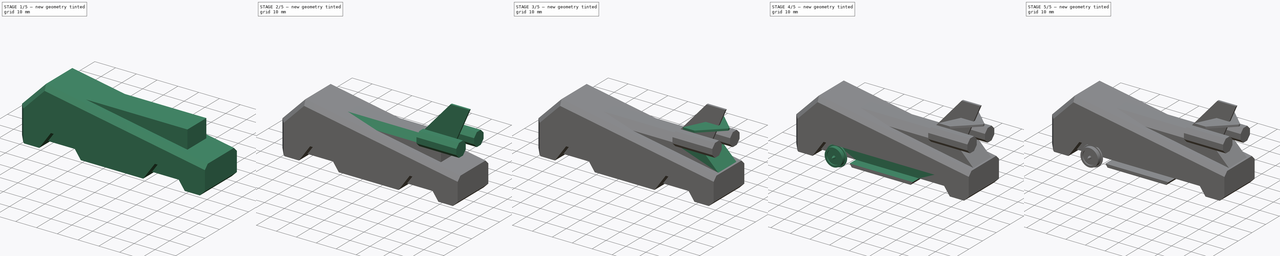
[diagram: build sequence overview — one tinted view per stage of 5, left to right]
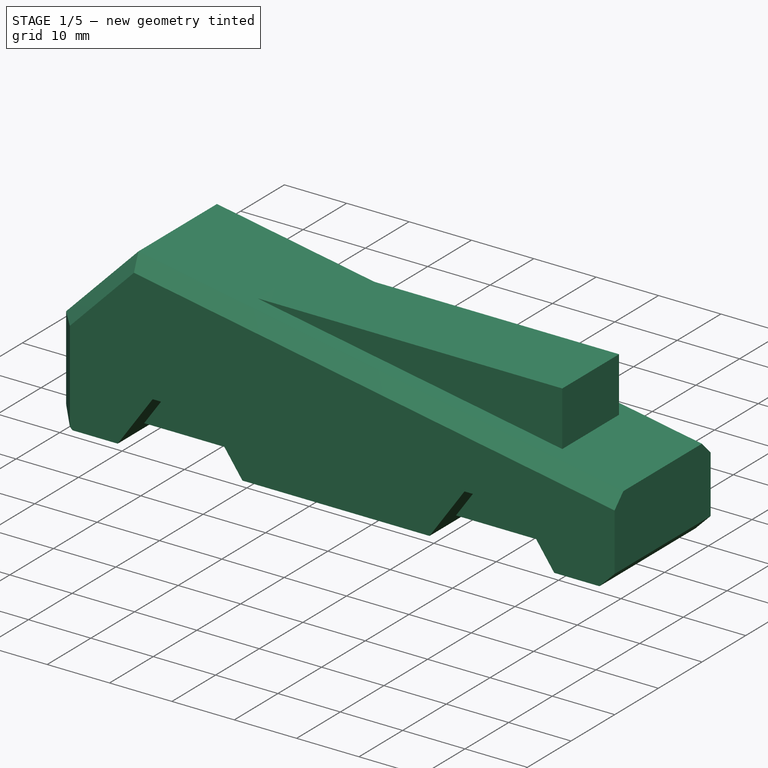
[diagram: stage 1 of 5 — iso view after this stage's code; geometry added in this stage tinted green]
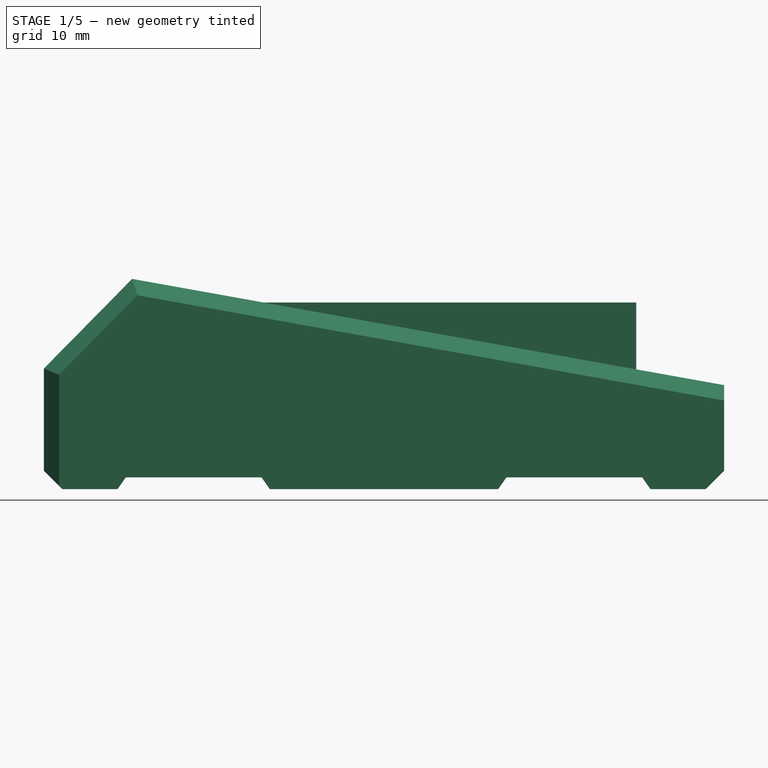
[diagram: stage 1 of 5 — front view after this stage's code; geometry added in this stage tinted green]
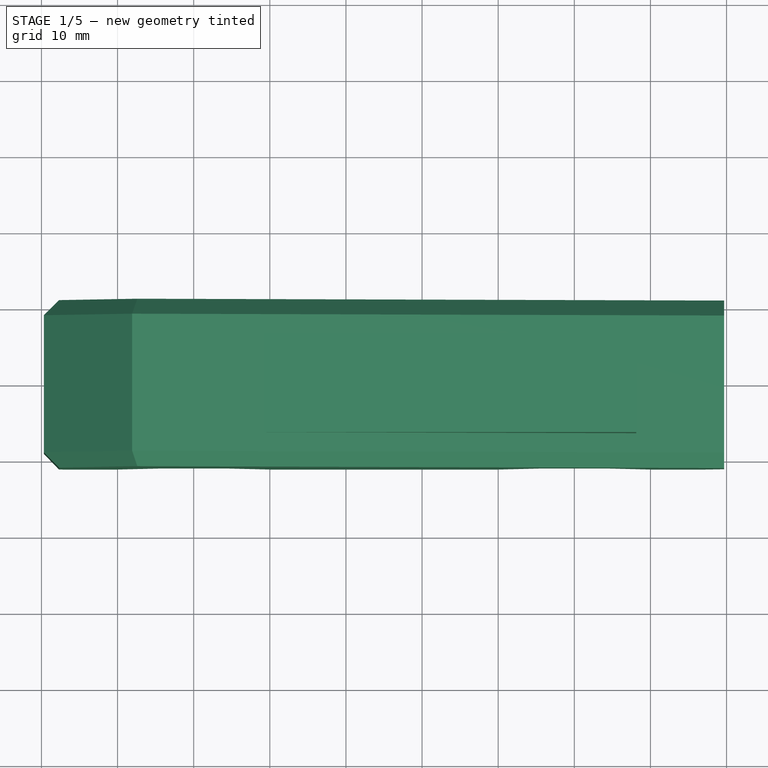
[diagram: stage 1 of 5 — top view after this stage's code; geometry added in this stage tinted green]
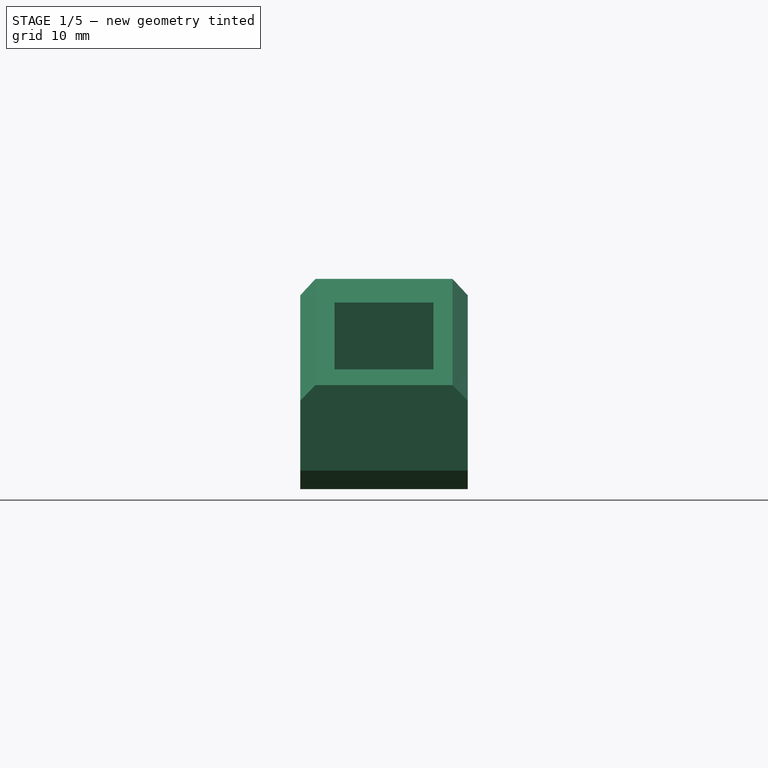
[diagram: stage 1 of 5 — right view after this stage's code; geometry added in this stage tinted green]
FCSTD DOCUMENT  (FreeCAD 0.18R15969 (Git))
Label: HO-SpaceEngine
License: All rights reserved
LicenseURL: http://en.wikipedia.org/wiki/All_rights_reserved
objects: Sketcher::SketchObject×8, PartDesign::Pad×5, PartDesign::Mirrored×4, PartDesign::Body×3, PartDesign::Revolution×2, PartDesign::Chamfer×2, PartDesign::Draft×1, PartDesign::Pocket×1
note: 34 computed .brp shape members not serialized (recipe doc carries the construction recipe); baked Part::Feature solids carry a one-line shape summary decoded from their .brp

FEATURE [PartDesign::Body] Body001
  Group = -> [Sketch001,Revolution001,Mirrored001]
  Origin = -> Origin001
  Placement = pos=(50,0,0) rot=(0,0,1;0rad)
  Tip = -> Mirrored001
FEATURE [Sketcher::SketchObject] Sketch002
  MapMode = 5
  Placement = pos=(0,0,0) rot=(1,0,0;1.5708rad)
  Support = -> [XZ_Plane002]
  sketch-geometry (19):
    g0: LineSegment StartX=-19.6779 StartY=0.876593 StartZ=0 EndX=-17.2514 EndY=-1.54989 EndZ=0
    g1: LineSegment StartX=-17.2514 StartY=-1.54989 StartZ=0 EndX=-10 EndY=-1.54989 EndZ=0
    g2: LineSegment StartX=-10 StartY=-1.54989 StartZ=0 EndX=-4.39161 EndY=6.40211 EndZ=0
    g3: LineSegment StartX=-4.39161 StartY=6.40211 StartZ=0 EndX=4.39161 EndY=6.40211 EndZ=0
    g4: LineSegment StartX=4.39161 StartY=6.40211 StartZ=0 EndX=10 EndY=-1.54989 EndZ=0
    g5: LineSegment StartX=10 StartY=-1.54989 StartZ=0 EndX=40 EndY=-1.54989 EndZ=0
    g6: LineSegment StartX=40 StartY=-1.54989 StartZ=0 EndX=45.6084 EndY=6.40211 EndZ=0
    g7: LineSegment StartX=45.6084 StartY=6.40211 StartZ=0 EndX=54.3916 EndY=6.40211 EndZ=0
    g8: LineSegment StartX=54.3916 StartY=6.40211 StartZ=0 EndX=60 EndY=-1.54989 EndZ=0
    g9: LineSegment StartX=-19.6779 StartY=0.876593 StartZ=0 EndX=-19.6779 EndY=14.2902 EndZ=0
    g10: LineSegment StartX=-19.6779 StartY=14.2902 StartZ=0 EndX=-8.08553 EndY=26.0663 EndZ=0
    g11: LineSegment StartX=-8.08553 StartY=26.0663 StartZ=0 EndX=69.6779 EndY=12.1133 EndZ=0
    g12: LineSegment StartX=69.6779 StartY=12.1133 StartZ=0 EndX=69.6779 EndY=0.876593 EndZ=0
    g13: LineSegment StartX=69.6779 StartY=0.876593 StartZ=0 EndX=67.2514 EndY=-1.54989 EndZ=0
    g14: LineSegment StartX=67.2514 StartY=-1.54989 StartZ=0 EndX=60 EndY=-1.54989 EndZ=0
    g15: LineSegment [constr] StartX=-10 StartY=-1.54989 StartZ=0 EndX=10 EndY=-1.54989 EndZ=0
    g16: LineSegment [constr] StartX=40 StartY=-1.54989 StartZ=0 EndX=60 EndY=-1.54989 EndZ=0
    g17: LineSegment [constr] StartX=-4.39161 StartY=6.40211 StartZ=0 EndX=0 EndY=0 EndZ=0
    g18: LineSegment [constr] StartX=0 StartY=0 StartZ=0 EndX=4.39161 EndY=6.40211 EndZ=0
  constraints (46):
    c: Coincident(g1,g0)
    c: Horizontal(g1)
    c: Coincident(g2,g1)
    c: Coincident(g3,g2)
    c: Horizontal(g3)
    c: Coincident(g4,g3)
    c: Coincident(g5,g4)
    c: Horizontal(g5)
    c: Coincident(g6,g5)
    c: Coincident(g7,g6)
    c: Horizontal(g7)
    c: Coincident(g8,g7)
    c: Coincident(g9,g0)
    c: Vertical(g9)
    c: Coincident(g10,g9)
    c: Coincident(g11,g10)
    c: Coincident(g12,g11)
    c: Vertical(g12)
    c: Coincident(g13,g12)
    c: Coincident(g14,g13)
    c: Coincident(g14,g8)
    c: Horizontal(g14)
    c: Equal(g14,g1)
    c: Equal(g13,g0)
    c: Angle(g1,g0) = 2.35619
    c: Angle(g13,g14) = 2.35619
    c: Equal(g2,g4)
    c: Equal(g6,g8)
    c: Coincident(g15,g1)
    c: Coincident(g15,g4)
    c: Horizontal(g15)
    c: Coincident(g16,g5)
    c: Coincident(g16,g8)
    c: Equal(g16,g15)
    c: Equal(g3,g7)
    c: DistanceX(g2,g6) = 50
    c: Coincident(g17,g2)
    c: Coincident(g18,g3)
    c: Coincident(g18,g-1)
    c: Equal(g18,g17)
    c: Equal(g17,g18)
    c: Coincident(g17,g-1)
    c: DistanceX(g15,g15) = 20
    c: Horizontal(g16)
    c: Equal(g16,g15)
    c: Equal(g6,g4)
FEATURE [PartDesign::Pad] Pad
  Length = 22
  Length2 = 100
  Midplane = true
  Placement = pos=(0,0,0) rot=(1,0,0;1.5708rad)
  Profile = -> Sketch002
  Refine = true
  Type = 0
FEATURE [Sketcher::SketchObject] Sketch003
  MapMode = 5
  Placement = pos=(0,0,0) rot=(1,0,0;1.5708rad)
  Support = -> [XZ_Plane002]
  sketch-geometry (8):
    g0: LineSegment StartX=-12.7052 StartY=11.6894 StartZ=0 EndX=62.5315 EndY=11.6894 EndZ=0
    g1: LineSegment StartX=62.5315 StartY=11.6894 StartZ=0 EndX=62.5315 EndY=0 EndZ=0
    g2: LineSegment StartX=62.5315 StartY=0 StartZ=0 EndX=-12.7052 EndY=0 EndZ=0
    g3: LineSegment StartX=-12.7052 StartY=0 StartZ=0 EndX=-12.7052 EndY=11.6894 EndZ=0
    g4: LineSegment StartX=2.76225 StartY=22.9559 StartZ=0 EndX=58.1395 EndY=22.9559 EndZ=0
    g5: LineSegment StartX=58.1395 StartY=22.9559 StartZ=0 EndX=58.1395 EndY=13.79 EndZ=0
    g6: LineSegment StartX=58.1395 StartY=13.79 StartZ=0 EndX=2.76225 EndY=13.79 EndZ=0
    g7: LineSegment StartX=2.76225 StartY=13.79 StartZ=0 EndX=2.76225 EndY=22.9559 EndZ=0
  constraints (17):
    c: Coincident(g0,g1)
    c: Coincident(g1,g2)
    c: Coincident(g2,g3)
    c: Coincident(g3,g0)
    c: Horizontal(g0)
    c: Horizontal(g2)
    c: Vertical(g1)
    c: Vertical(g3)
    c: PointOnObject(g1,g-1)
    c: Coincident(g4,g5)
    c: Coincident(g5,g6)
    c: Coincident(g6,g7)
    c: Coincident(g7,g4)
    c: Horizontal(g4)
    c: Horizontal(g6)
    c: Vertical(g5)
    c: Vertical(g7)
FEATURE [PartDesign::Pad] Pad001
  BaseFeature = -> Pad
  Length = 13
  Length2 = 100
  Midplane = true
  Placement = pos=(0,0,0) rot=(1,0,0;1.5708rad)
  Profile = -> Sketch003
  Refine = true
  Type = 0
FEATURE [PartDesign::Chamfer] Chamfer
  Base = -> Pad001 [Edge33,Edge21,Edge34,Edge22,Edge6,Edge7]
  BaseFeature = -> Pad001
  Placement = pos=(0,0,0) rot=(1,0,0;1.5708rad)
  Size = 2
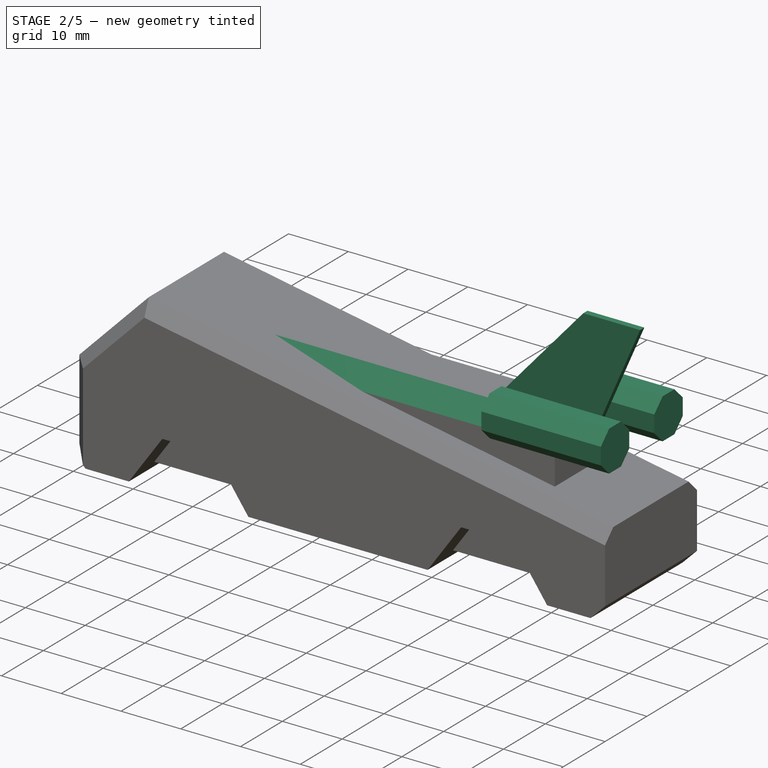
[diagram: stage 2 of 5 — iso view after this stage's code; geometry added in this stage tinted green]
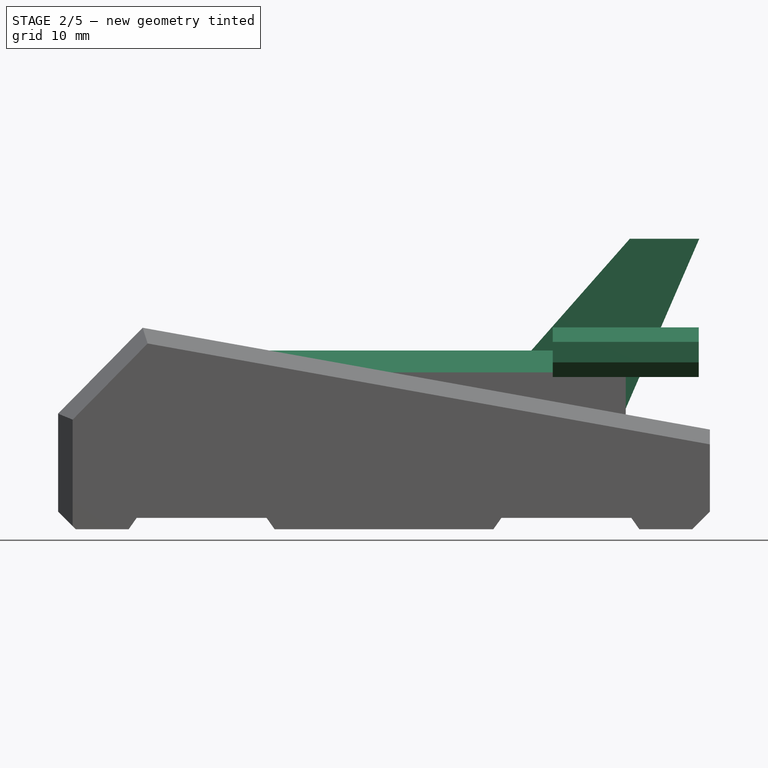
[diagram: stage 2 of 5 — front view after this stage's code; geometry added in this stage tinted green]
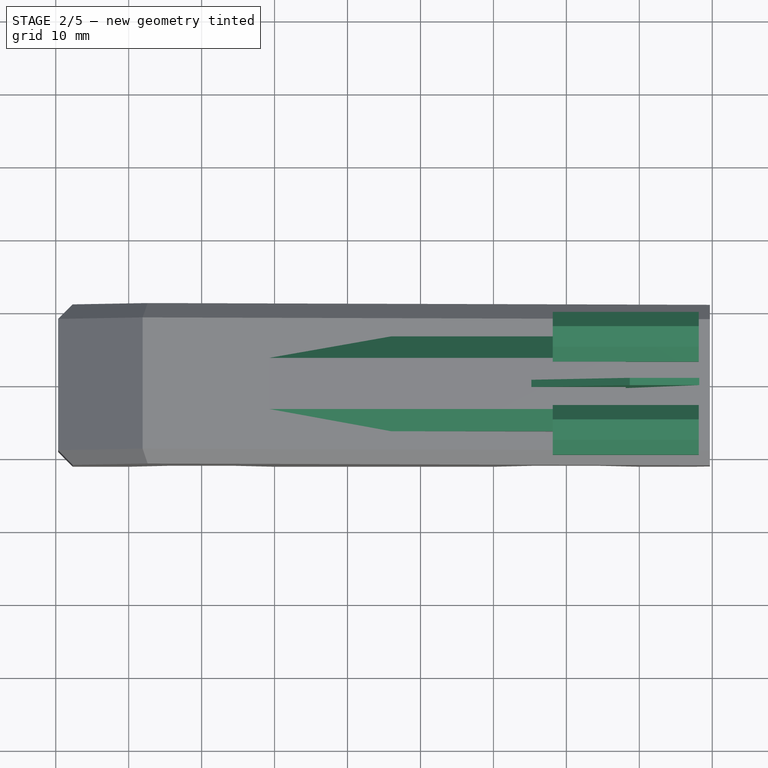
[diagram: stage 2 of 5 — top view after this stage's code; geometry added in this stage tinted green]
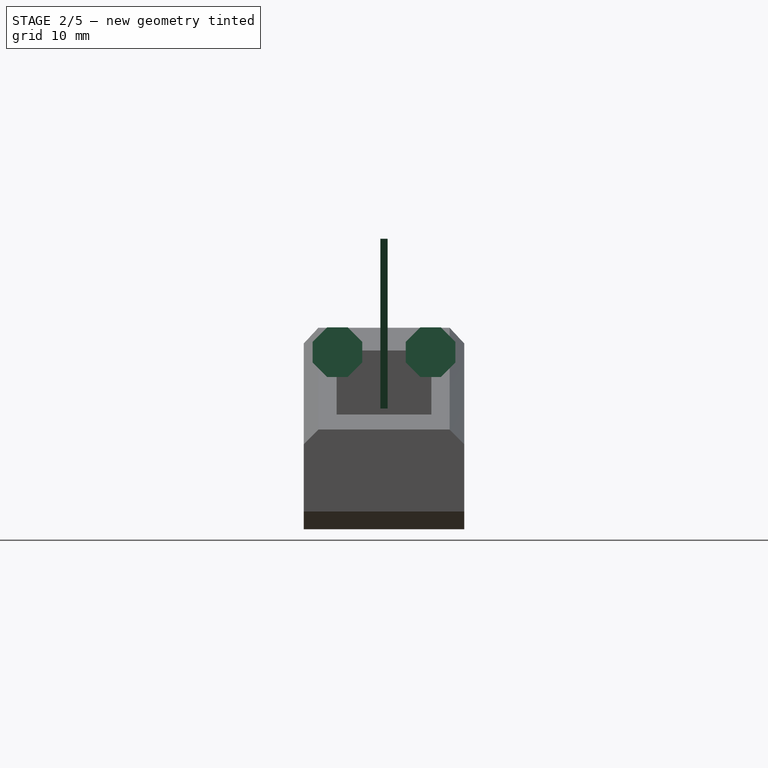
[diagram: stage 2 of 5 — right view after this stage's code; geometry added in this stage tinted green]
FEATURE [Sketcher::SketchObject] Sketch004
  MapMode = 5
  Placement = pos=(58.1395,0,0) rot=(0.707107,0,0.707107;3.14159rad)
  Support = -> [Chamfer]
  sketch-geometry (22):
    g0: LineSegment StartX=24.1287 StartY=2.98807 StartZ=0 EndX=26.12 EndY=4.97935 EndZ=0
    g1: LineSegment StartX=26.12 StartY=4.97935 StartZ=0 EndX=26.12 EndY=7.79544 EndZ=0
    g2: LineSegment StartX=26.12 StartY=7.79544 StartZ=0 EndX=24.1287 EndY=9.78671 EndZ=0
    g3: LineSegment StartX=24.1287 StartY=9.78671 StartZ=0 EndX=21.3126 EndY=9.78671 EndZ=0
    g4: LineSegment StartX=21.3126 StartY=9.78671 StartZ=0 EndX=19.3214 EndY=7.79544 EndZ=0
    g5: LineSegment StartX=19.3214 StartY=7.79544 StartZ=0 EndX=19.3214 EndY=4.97935 EndZ=0
    g6: LineSegment StartX=19.3214 StartY=4.97935 StartZ=0 EndX=21.3126 EndY=2.98807 EndZ=0
    g7: LineSegment StartX=21.3126 StartY=2.98807 StartZ=0 EndX=24.1287 EndY=2.98807 EndZ=0
    g8: Circle [constr] CenterX=22.7207 CenterY=6.38739 CenterZ=0 NormalX=0 NormalY=0 NormalZ=1 AngleXU=0 Radius=3.6794
    g9: LineSegment StartX=26.12 StartY=-4.97935 StartZ=0 EndX=24.1287 EndY=-2.98807 EndZ=0
    g10: LineSegment StartX=24.1287 StartY=-2.98807 StartZ=0 EndX=21.3126 EndY=-2.98807 EndZ=0
    g11: LineSegment StartX=21.3126 StartY=-2.98807 StartZ=0 EndX=19.3214 EndY=-4.97935 EndZ=0
    g12: LineSegment StartX=19.3214 StartY=-4.97935 StartZ=0 EndX=19.3214 EndY=-7.79544 EndZ=0
    g13: LineSegment StartX=19.3214 StartY=-7.79544 StartZ=0 EndX=21.3126 EndY=-9.78671 EndZ=0
    g14: LineSegment StartX=21.3126 StartY=-9.78671 StartZ=0 EndX=24.1287 EndY=-9.78671 EndZ=0
    g15: LineSegment StartX=24.1287 StartY=-9.78671 StartZ=0 EndX=26.12 EndY=-7.79544 EndZ=0
    g16: LineSegment StartX=26.12 StartY=-7.79544 StartZ=0 EndX=26.12 EndY=-4.97935 EndZ=0
    g17: Circle [constr] CenterX=22.7207 CenterY=-6.38739 CenterZ=0 NormalX=0 NormalY=0 NormalZ=1 AngleXU=0 Radius=3.6794
    g18: LineSegment [constr] StartX=21.3126 StartY=2.98807 StartZ=0 EndX=22.7207 EndY=0 EndZ=0
    g19: LineSegment [constr] StartX=24.1287 StartY=2.98807 StartZ=0 EndX=22.7207 EndY=0 EndZ=0
    g20: LineSegment [constr] StartX=22.7207 StartY=0 StartZ=0 EndX=21.3126 EndY=-2.98807 EndZ=0
    g21: LineSegment [constr] StartX=22.7207 StartY=0 StartZ=0 EndX=24.1287 EndY=-2.98807 EndZ=0
  constraints (48):
    c: Coincident(g0,g1)
    c: Coincident(g1,g2)
    c: Coincident(g2,g3)
    c: Coincident(g3,g4)
    c: Coincident(g4,g5)
    c: Coincident(g5,g6)
    c: Coincident(g6,g7)
    c: Coincident(g7,g0)
    c: Equal(g0, g1-g7) x7
    c: PointOnObject(g0,g8)
    c: PointOnObject(g1,g8)
    c: PointOnObject(g2,g8)
    c: PointOnObject(g3,g8)
    c: PointOnObject(g4,g8)
    c: PointOnObject(g5,g8)
    c: PointOnObject(g6,g8)
    c: PointOnObject(g7,g8)
    c: Coincident(g9,g10)
    c: Coincident(g10,g11)
    c: Coincident(g11,g12)
    c: Coincident(g12,g13)
    c: Coincident(g13,g14)
    c: Coincident(g14,g15)
    c: Coincident(g15,g16)
    c: Coincident(g16,g9)
    c: Equal(g9, g10-g16) x7
    c: PointOnObject(g9,g17)
    c: PointOnObject(g10,g17)
    c: PointOnObject(g11,g17)
    c: PointOnObject(g12,g17)
    c: PointOnObject(g13,g17)
    c: PointOnObject(g14,g17)
    c: PointOnObject(g15,g17)
    c: PointOnObject(g16,g17)
    c: Equal(g10,g7)
    c: Horizontal(g7)
    c: Horizontal(g10)
    c: Coincident(g18,g6)
    c: PointOnObject(g18,g-1)
    c: Coincident(g19,g0)
    c: Coincident(g19,g18)
    c: Coincident(g20,g18)
    c: Coincident(g20,g10)
    c: Coincident(g21,g18)
    c: Coincident(g21,g9)
    c: Equal(g21,g20)
    c: Equal(g19,g18)
    c: Equal(g18,g20)
FEATURE [PartDesign::Pad] Pad002
  BaseFeature = -> Chamfer
  Length = 20
  Length2 = 100
  Midplane = true
  Placement = pos=(0,0,0) rot=(1,0,0;1.5708rad)
  Profile = -> Sketch004
  Refine = true
  Reversed = true
  Type = 0
FEATURE [PartDesign::Chamfer] Chamfer001
  Base = -> Pad002 [Edge88,Edge94]
  BaseFeature = -> Pad002
  Placement = pos=(0,0,0) rot=(1,0,0;1.5708rad)
  Size = 3
FEATURE [Sketcher::SketchObject] Sketch005
  MapMode = 5
  Placement = pos=(0,0,0) rot=(1,0,0;1.5708rad)
  Support = -> [XZ_Plane002]
  sketch-geometry (4):
    g0: LineSegment StartX=58.6935 StartY=38.2622 StartZ=0 EndX=68.2162 EndY=38.2622 EndZ=0
    g1: LineSegment StartX=68.2162 StartY=38.2622 StartZ=0 EndX=57.1981 EndY=12.8224 EndZ=0
    g2: LineSegment StartX=58.6935 StartY=38.2622 StartZ=0 EndX=38.1907 EndY=15.0098 EndZ=0
    g3: LineSegment StartX=38.1907 StartY=15.0098 StartZ=0 EndX=57.1981 EndY=12.8224 EndZ=0
  constraints (5):
    c: Horizontal(g0)
    c: Coincident(g1,g0)
    c: Coincident(g2,g0)
    c: Coincident(g3,g2)
    c: Coincident(g3,g1)
FEATURE [PartDesign::Pad] Pad003
  BaseFeature = -> Chamfer001
  Length = 1
  Length2 = 100
  Midplane = true
  Placement = pos=(0,0,0) rot=(1,0,0;1.5708rad)
  Profile = -> Sketch005
  Refine = true
  Type = 0
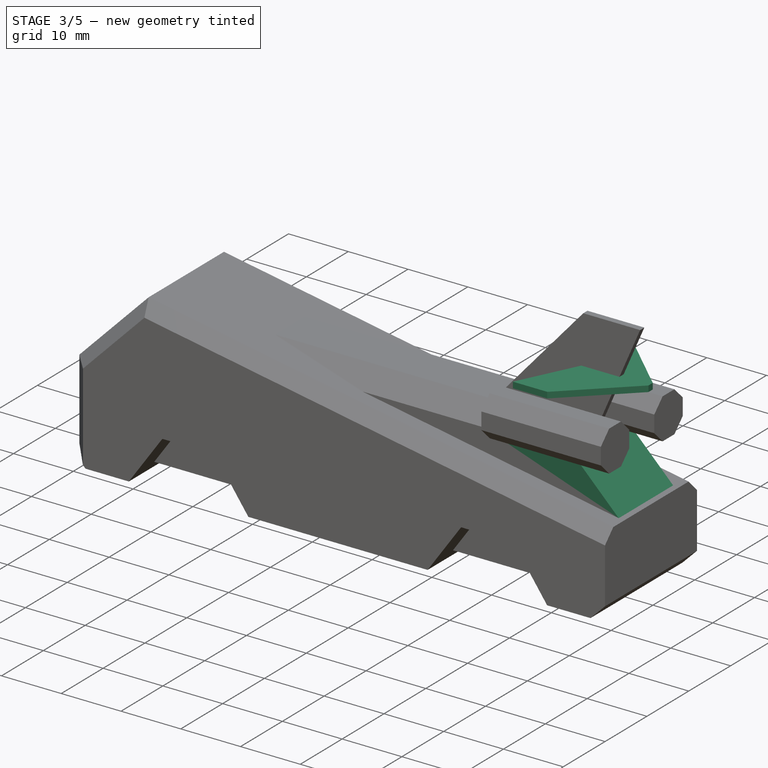
[diagram: stage 3 of 5 — iso view after this stage's code; geometry added in this stage tinted green]
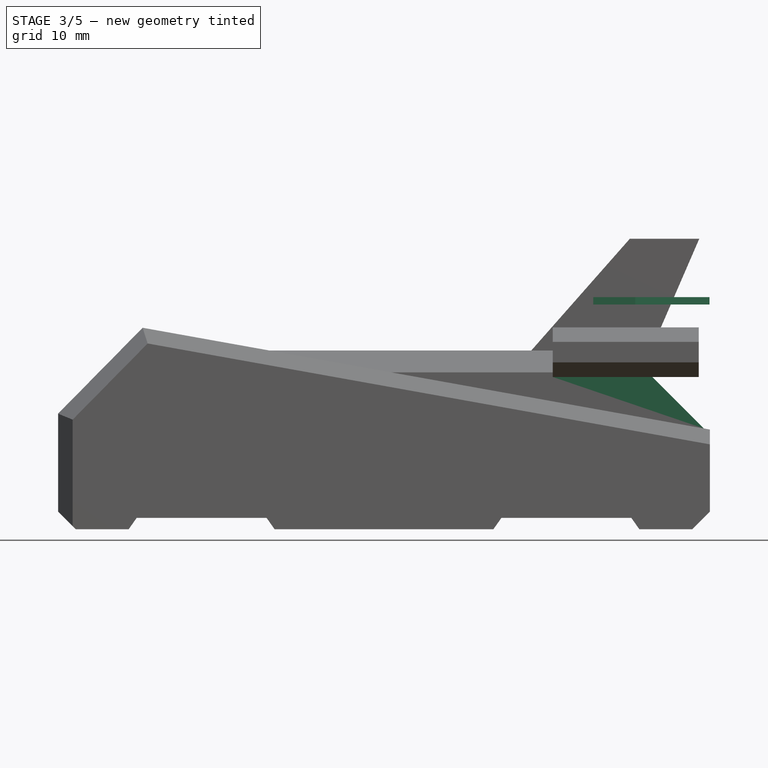
[diagram: stage 3 of 5 — front view after this stage's code; geometry added in this stage tinted green]
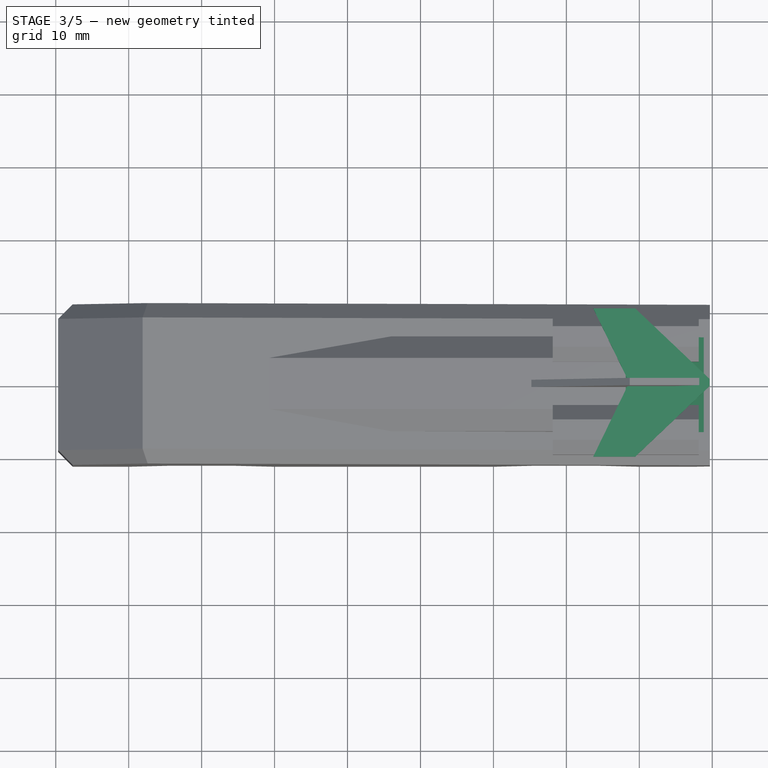
[diagram: stage 3 of 5 — top view after this stage's code; geometry added in this stage tinted green]
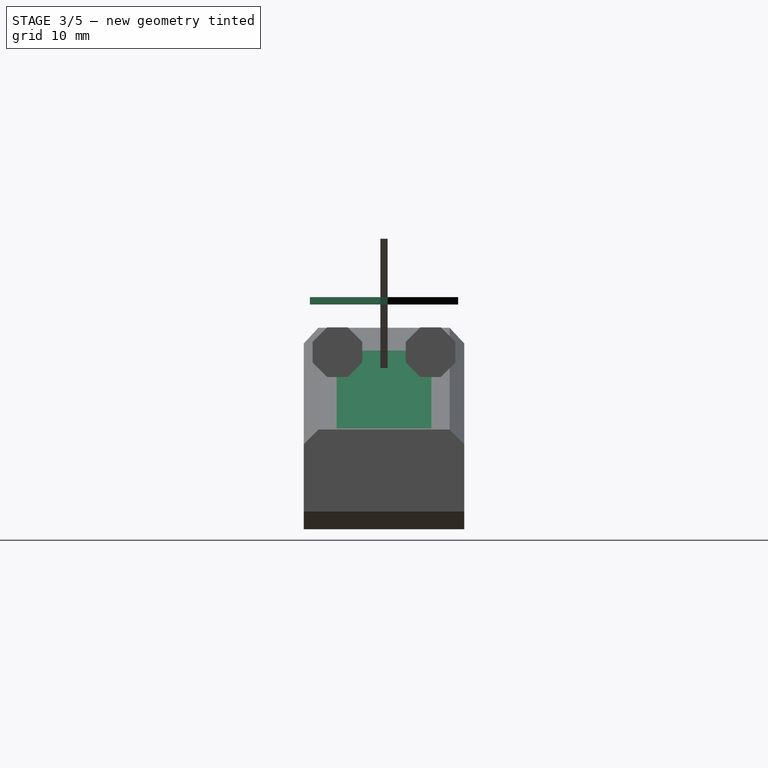
[diagram: stage 3 of 5 — right view after this stage's code; geometry added in this stage tinted green]
FEATURE [Sketcher::SketchObject] Sketch006
  AttachmentOffset = pos=(0,0,-8) rot=(0,0,1;0rad)
  MapMode = 5
  Placement = pos=(0,2.02e-14,30.2622) rot=(0,0,1;3.14159rad)
  Support = -> [Pad003]
  sketch-geometry (5):
    g0: LineSegment StartX=-58.6186 StartY=0 StartZ=0 EndX=-53.6827 EndY=10.1607 EndZ=0
    g1: LineSegment StartX=-53.6827 StartY=10.1607 StartZ=0 EndX=-59.4412 EndY=10.1607 EndZ=0
    g2: LineSegment StartX=-59.4412 StartY=10.1607 StartZ=0 EndX=-69.6126 EndY=0.509348 EndZ=0
    g3: LineSegment StartX=-69.6126 StartY=0.509348 StartZ=0 EndX=-69.6126 EndY=0 EndZ=0
    g4: LineSegment StartX=-69.6126 StartY=0 StartZ=0 EndX=-58.6186 EndY=0 EndZ=0
  constraints (9):
    c: PointOnObject(g0,g-1)
    c: Coincident(g1,g0)
    c: Horizontal(g1)
    c: Coincident(g2,g1)
    c: Coincident(g3,g2)
    c: PointOnObject(g3,g-1)
    c: Vertical(g3)
    c: Coincident(g4,g3)
    c: Coincident(g4,g0)
FEATURE [PartDesign::Pad] Pad004
  BaseFeature = -> Pad003
  Length = 1
  Length2 = 100
  Placement = pos=(0,0,0) rot=(1,0,0;1.5708rad)
  Profile = -> Sketch006
  Refine = true
  Reversed = true
  Type = 0
FEATURE [PartDesign::Mirrored] Mirrored002
  BaseFeature = -> Pad004
  MirrorPlane = -> XZ_Plane002
  Originals = -> [Pad004]
  Placement = pos=(0,0,0) rot=(1,0,0;1.5708rad)
  Refine = true
FEATURE [PartDesign::Draft] Draft
  Angle = 45
  Base = -> Mirrored002 [Face7]
  BaseFeature = -> Mirrored002
  NeutralPlane = -> Mirrored002 [Face2]
  Placement = pos=(0,0,0) rot=(1,0,0;1.5708rad)
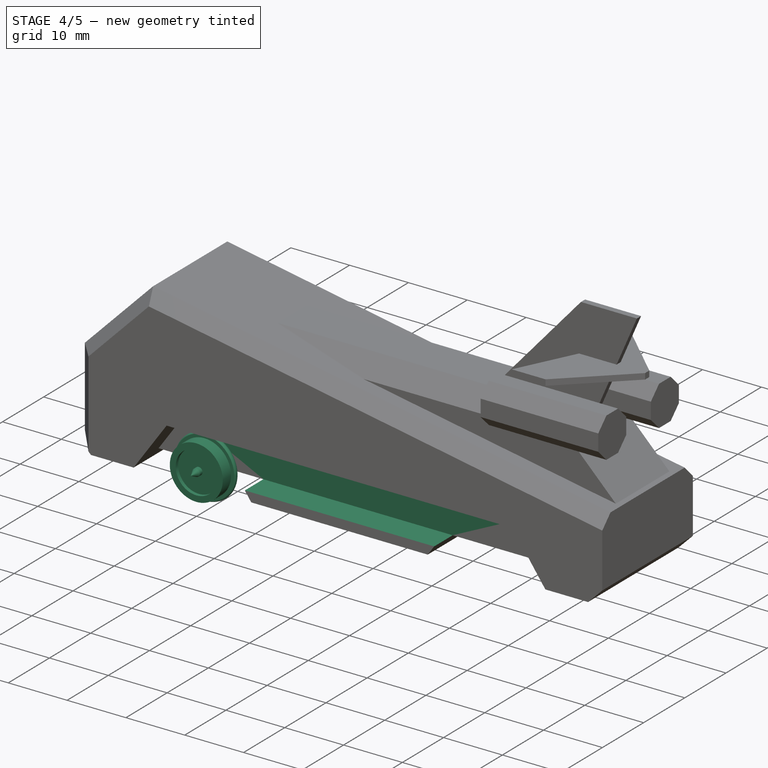
[diagram: stage 4 of 5 — iso view after this stage's code; geometry added in this stage tinted green]
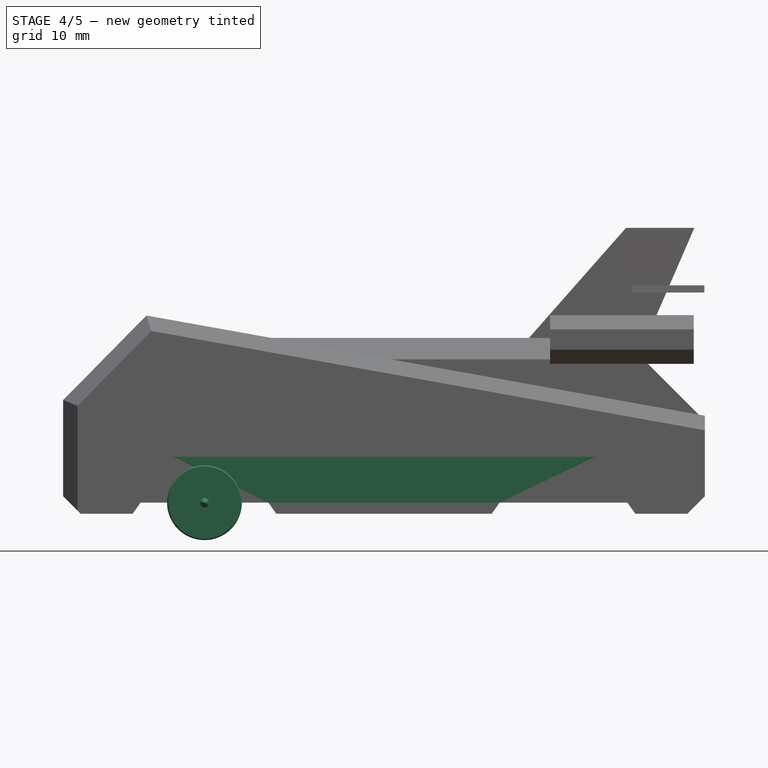
[diagram: stage 4 of 5 — front view after this stage's code; geometry added in this stage tinted green]
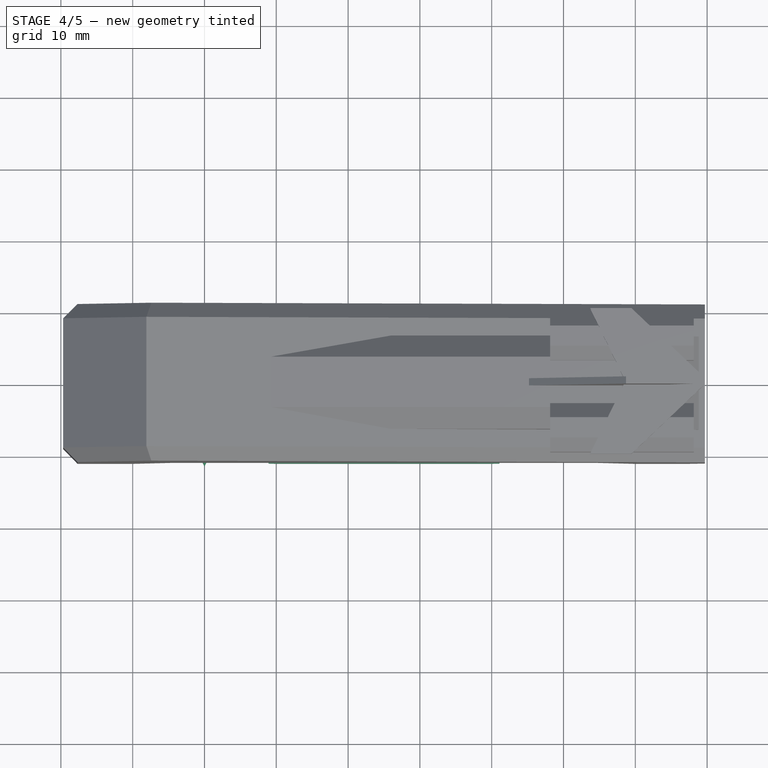
[diagram: stage 4 of 5 — top view after this stage's code; geometry added in this stage tinted green]
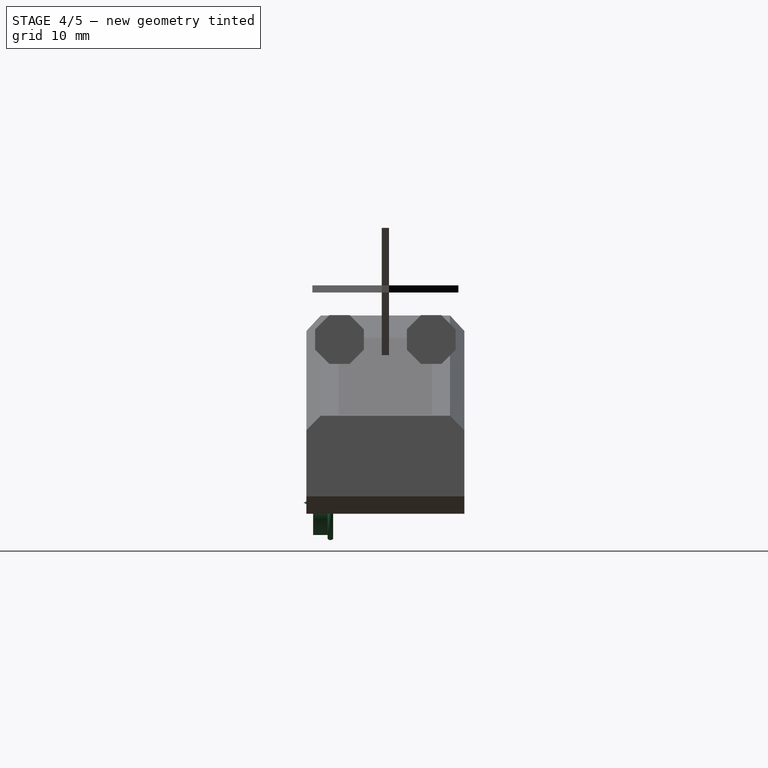
[diagram: stage 4 of 5 — right view after this stage's code; geometry added in this stage tinted green]
FEATURE [PartDesign::Body] Body
  Group = -> [Sketch,Revolution,Mirrored]
  Origin = -> Origin
  Tip = -> Mirrored
FEATURE [Sketcher::SketchObject] Sketch001
  MapMode = 5
  Placement = pos=(0,0,0) rot=(0.57735,0.57735,0.57735;2.0944rad)
  Support = -> [YZ_Plane001]
  expr: Constraints[32] = 15.32 - 14.55
  sketch-geometry (15):
    g0: LineSegment StartX=0 StartY=0 StartZ=0 EndX=-11.3851 EndY=0 EndZ=0
    g1: LineSegment StartX=-11.3851 StartY=0 StartZ=0 EndX=-10.1223 EndY=0.642798 EndZ=0
    g2: LineSegment StartX=-10.1223 StartY=0.642798 StartZ=0 EndX=-9.46381 EndY=0.642798 EndZ=0
    g3: LineSegment StartX=-9.46381 StartY=0.642798 StartZ=0 EndX=-9.46381 EndY=3.5 EndZ=0
    g4: LineSegment StartX=-9.46381 StartY=3.5 StartZ=0 EndX=-10.065 EndY=3.5 EndZ=0
    g5: LineSegment StartX=-10.065 StartY=3.5 StartZ=0 EndX=-10.065 EndY=4.5 EndZ=0
    g6: LineSegment StartX=-10.065 StartY=4.5 StartZ=0 EndX=-8.045 EndY=4.5 EndZ=0
    g7: LineSegment StartX=-8.045 StartY=4.5 StartZ=0 EndX=-8.045 EndY=5.03897 EndZ=0
    g8: LineSegment StartX=-7.275 StartY=5.03897 StartZ=0 EndX=-7.275 EndY=4.5 EndZ=0
    g9: LineSegment StartX=-7.275 StartY=4.5 StartZ=0 EndX=-7.275 EndY=0.75 EndZ=0
    g10: LineSegment StartX=-7.275 StartY=0.75 StartZ=0 EndX=0 EndY=0.75 EndZ=0
    g11: LineSegment StartX=0 StartY=0.75 StartZ=0 EndX=0 EndY=0 EndZ=0
    g12: LineSegment [constr] StartX=-8.045 StartY=4.5 StartZ=0 EndX=-7.275 EndY=4.5 EndZ=0
    g13: ArcOfCircle CenterX=-7.66 CenterY=4.69115 CenterZ=0 NormalX=0 NormalY=0 NormalZ=1 AngleXU=0 Radius=0.518849 StartAngle=0.734708 EndAngle=2.40688
    g14: LineSegment [constr] StartX=-7.66 StartY=4.69115 StartZ=0 EndX=-7.66 EndY=5.21 EndZ=0
  constraints (39):
    c: Coincident(g0,g-1)
    c: PointOnObject(g0,g-1)
    c: Coincident(g1,g0)
    c: Coincident(g2,g1)
    c: Horizontal(g2)
    c: Coincident(g3,g2)
    c: Vertical(g3)
    c: Coincident(g4,g3)
    c: Horizontal(g4)
    c: Coincident(g5,g4)
    c: Vertical(g5)
    c: Coincident(g6,g5)
    c: Horizontal(g6)
    c: Coincident(g7,g6)
    c: Vertical(g7)
    c: Vertical(g8)
    c: Equal(g8,g7)
    c: Coincident(g9,g8)
    c: Vertical(g9)
    c: Coincident(g10,g9)
    c: PointOnObject(g10,g-2)
    c: Horizontal(g10)
    c: Coincident(g11,g10)
    c: Coincident(g11,g0)
    c: Coincident(g12,g6)
    c: Coincident(g12,g8)
    c: Horizontal(g12)
    c: Coincident(g13,g7)
    c: Coincident(g13,g8)
    c: DistanceX(g9,g0) = 7.275
    c: DistanceX(g5,g9) = 2.79
    c: DistanceY(g5,g5) = 1
    c: DistanceX(g6,g8) = 0.77
    c: DistanceY(g0,g5) = 4.5
    c: Coincident(g14,g13)
    c: PointOnObject(g14,g13)
    c: Vertical(g14)
    c: DistanceY(g8,g14) = 0.71
    c: DistanceY(g11,g11) = 0.75
FEATURE [PartDesign::Revolution] Revolution001
  Angle = 360
  Axis = (3e-16,1,-2e-16)
  Base = (0,0,0)
  Placement = pos=(0,0,0) rot=(0.57735,0.57735,0.57735;2.0944rad)
  Profile = -> Sketch001
  ReferenceAxis = -> Sketch001 [H_Axis]
  Refine = true
FEATURE [Sketcher::SketchObject] Sketch007
  ExternalGeometry = -> [Draft]
  MapMode = 5
  Placement = pos=(0,-11,2.69e-14) rot=(1,0,0;1.5708rad)
  Support = -> [Draft]
  sketch-geometry (4):
    g0: LineSegment StartX=4.39161 StartY=6.40211 StartZ=0 EndX=45.6084 EndY=6.40211 EndZ=0
    g1: LineSegment StartX=45.6084 StartY=6.40211 StartZ=0 EndX=45.6084 EndY=0 EndZ=0
    g2: LineSegment StartX=45.6084 StartY=0 StartZ=0 EndX=4.39161 EndY=0 EndZ=0
    g3: LineSegment StartX=4.39161 StartY=0 StartZ=0 EndX=4.39161 EndY=6.40211 EndZ=0
  constraints (10):
    c: Coincident(g0,g1)
    c: Coincident(g1,g2)
    c: Coincident(g2,g3)
    c: Coincident(g3,g0)
    c: Horizontal(g2)
    c: Vertical(g1)
    c: Vertical(g3)
    c: Coincident(g0,g-4)
    c: Coincident(g0,g-3)
    c: PointOnObject(g2,g-1)
FEATURE [PartDesign::Pocket] Pocket
  BaseFeature = -> Draft
  Length = 4.5
  Length2 = 100
  Placement = pos=(0,0,0) rot=(1,0,0;1.5708rad)
  Profile = -> Sketch007
  Refine = true
  Type = 0
FEATURE [PartDesign::Mirrored] Mirrored003
  BaseFeature = -> Pocket
  MirrorPlane = -> XZ_Plane002
  Originals = -> [Pocket]
  Placement = pos=(0,0,0) rot=(1,0,0;1.5708rad)
  Refine = true
FEATURE [PartDesign::Body] Body002
  Group = -> [Sketch002,Pad,Sketch003,Pad001,Chamfer,Sketch004,Pad002,Chamfer001,Sketch005,Pad003,Sketch006,Pad004,Mirrored002,Draft,Sketch007,Pocket,Mirrored003]
  Origin = -> Origin002
  Tip = -> Mirrored003
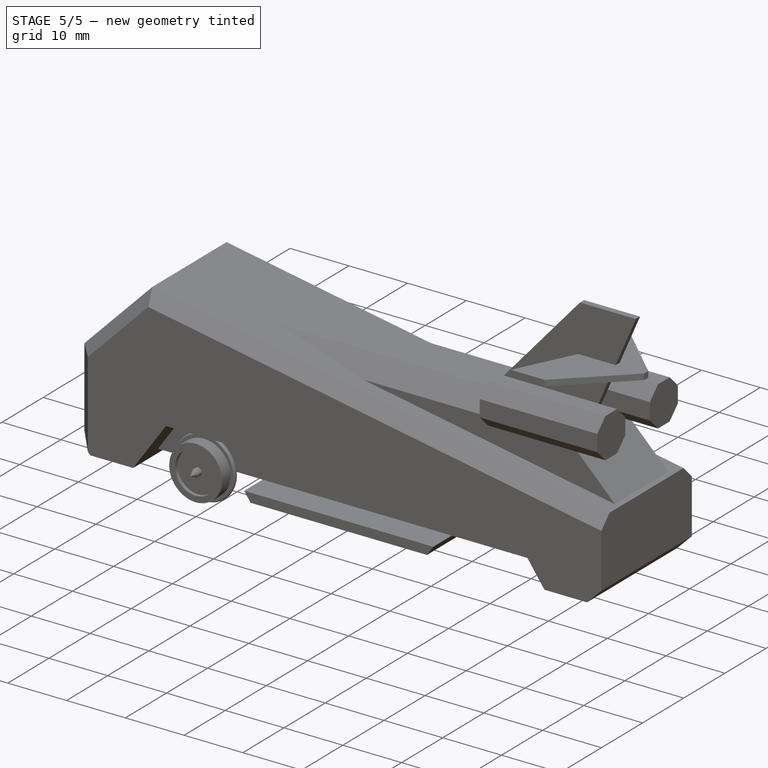
[diagram: stage 5 of 5 — iso view after this stage's code; geometry added in this stage tinted green]
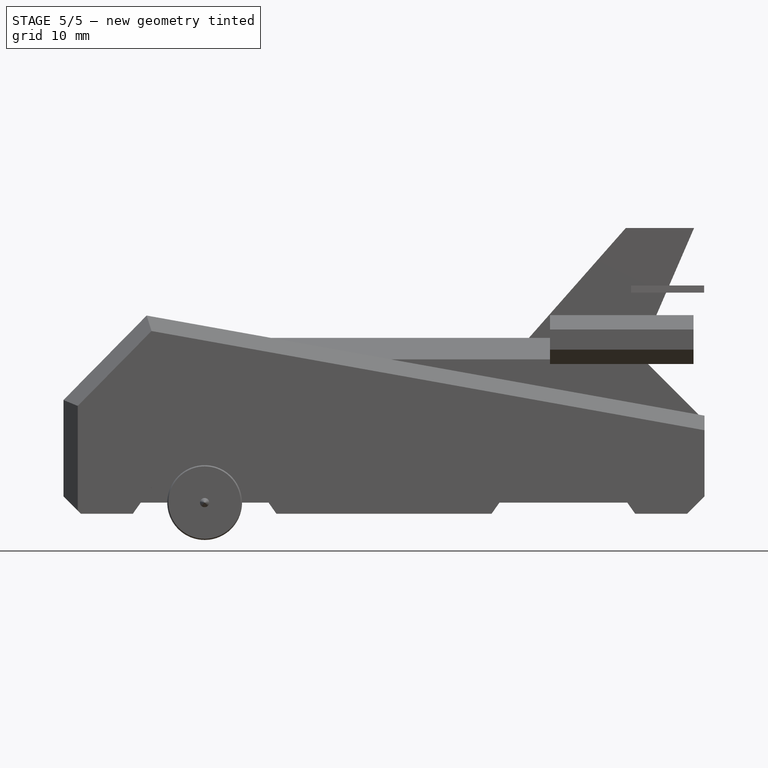
[diagram: stage 5 of 5 — front view after this stage's code; geometry added in this stage tinted green]
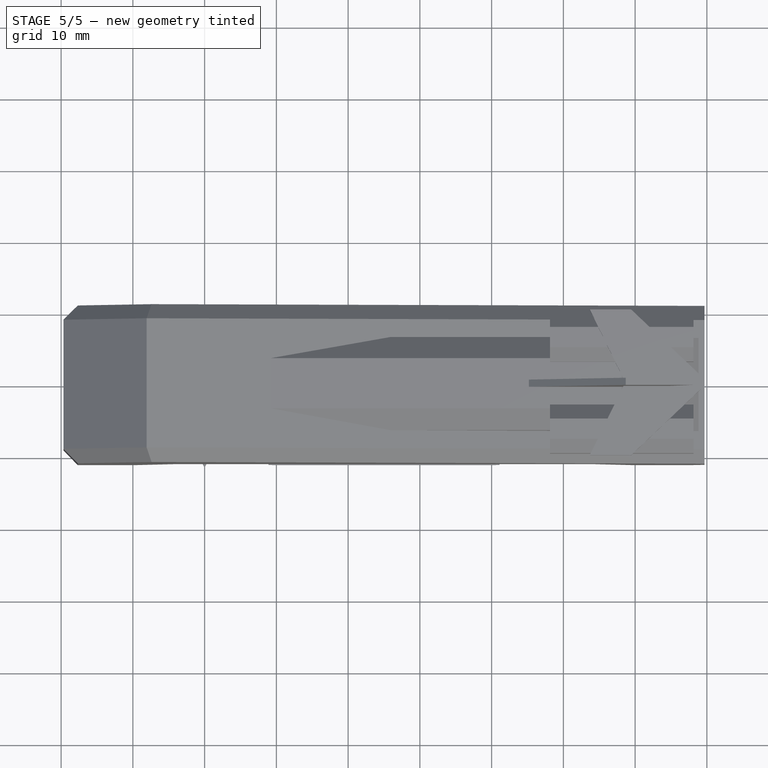
[diagram: stage 5 of 5 — top view after this stage's code; geometry added in this stage tinted green]
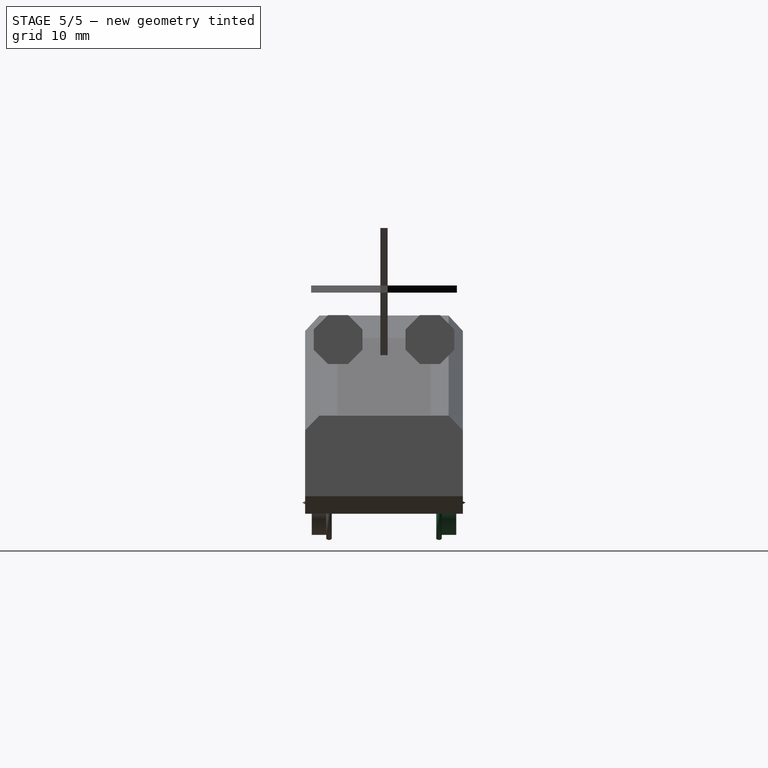
[diagram: stage 5 of 5 — right view after this stage's code; geometry added in this stage tinted green]
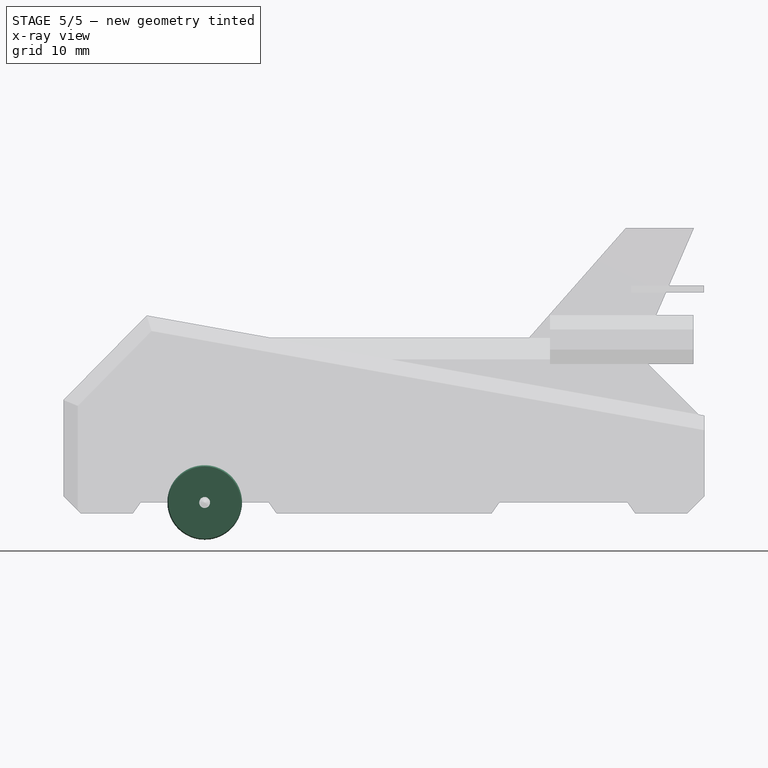
[diagram: stage 5 of 5 — x-ray composite at the front view; earlier geometry ghosted, this stage's added geometry solid]
FEATURE [Sketcher::SketchObject] Sketch
  MapMode = 5
  Placement = pos=(0,0,0) rot=(0.57735,0.57735,0.57735;2.0944rad)
  Support = -> [YZ_Plane]
  expr: Constraints[32] = 15.32 - 14.55
  sketch-geometry (15):
    g0: LineSegment StartX=0 StartY=0 StartZ=0 EndX=-11.3851 EndY=0 EndZ=0
    g1: LineSegment StartX=-11.3851 StartY=0 StartZ=0 EndX=-10.1223 EndY=0.642798 EndZ=0
    g2: LineSegment StartX=-10.1223 StartY=0.642798 StartZ=0 EndX=-9.46381 EndY=0.642798 EndZ=0
    g3: LineSegment StartX=-9.46381 StartY=0.642798 StartZ=0 EndX=-9.46381 EndY=3.5 EndZ=0
    g4: LineSegment StartX=-9.46381 StartY=3.5 StartZ=0 EndX=-10.065 EndY=3.5 EndZ=0
    g5: LineSegment StartX=-10.065 StartY=3.5 StartZ=0 EndX=-10.065 EndY=4.5 EndZ=0
    g6: LineSegment StartX=-10.065 StartY=4.5 StartZ=0 EndX=-8.045 EndY=4.5 EndZ=0
    g7: LineSegment StartX=-8.045 StartY=4.5 StartZ=0 EndX=-8.045 EndY=5.03897 EndZ=0
    g8: LineSegment StartX=-7.275 StartY=5.03897 StartZ=0 EndX=-7.275 EndY=4.5 EndZ=0
    g9: LineSegment StartX=-7.275 StartY=4.5 StartZ=0 EndX=-7.275 EndY=0.75 EndZ=0
    g10: LineSegment StartX=-7.275 StartY=0.75 StartZ=0 EndX=0 EndY=0.75 EndZ=0
    g11: LineSegment StartX=0 StartY=0.75 StartZ=0 EndX=0 EndY=0 EndZ=0
    g12: LineSegment [constr] StartX=-8.045 StartY=4.5 StartZ=0 EndX=-7.275 EndY=4.5 EndZ=0
    g13: ArcOfCircle CenterX=-7.66 CenterY=4.69115 CenterZ=0 NormalX=0 NormalY=0 NormalZ=1 AngleXU=0 Radius=0.518849 StartAngle=0.734708 EndAngle=2.40688
    g14: LineSegment [constr] StartX=-7.66 StartY=4.69115 StartZ=0 EndX=-7.66 EndY=5.21 EndZ=0
  constraints (39):
    c: Coincident(g0,g-1)
    c: PointOnObject(g0,g-1)
    c: Coincident(g1,g0)
    c: Coincident(g2,g1)
    c: Horizontal(g2)
    c: Coincident(g3,g2)
    c: Vertical(g3)
    c: Coincident(g4,g3)
    c: Horizontal(g4)
    c: Coincident(g5,g4)
    c: Vertical(g5)
    c: Coincident(g6,g5)
    c: Horizontal(g6)
    c: Coincident(g7,g6)
    c: Vertical(g7)
    c: Vertical(g8)
    c: Equal(g8,g7)
    c: Coincident(g9,g8)
    c: Vertical(g9)
    c: Coincident(g10,g9)
    c: PointOnObject(g10,g-2)
    c: Horizontal(g10)
    c: Coincident(g11,g10)
    c: Coincident(g11,g0)
    c: Coincident(g12,g6)
    c: Coincident(g12,g8)
    c: Horizontal(g12)
    c: Coincident(g13,g7)
    c: Coincident(g13,g8)
    c: DistanceX(g9,g0) = 7.275
    c: DistanceX(g5,g9) = 2.79
    c: DistanceY(g5,g5) = 1
    c: DistanceX(g6,g8) = 0.77
    c: DistanceY(g0,g5) = 4.5
    c: Coincident(g14,g13)
    c: PointOnObject(g14,g13)
    c: Vertical(g14)
    c: DistanceY(g8,g14) = 0.71
    c: DistanceY(g11,g11) = 0.75
FEATURE [PartDesign::Revolution] Revolution
  Angle = 360
  Axis = (3e-16,1,-2e-16)
  Base = (0,0,0)
  Placement = pos=(0,0,0) rot=(0.57735,0.57735,0.57735;2.0944rad)
  Profile = -> Sketch
  ReferenceAxis = -> Sketch [H_Axis]
  Refine = true
FEATURE [PartDesign::Mirrored] Mirrored
  BaseFeature = -> Revolution
  MirrorPlane = -> Sketch [V_Axis]
  Originals = -> [Revolution]
  Placement = pos=(0,0,0) rot=(0.57735,0.57735,0.57735;2.0944rad)
  Refine = true
FEATURE [PartDesign::Mirrored] Mirrored001
  BaseFeature = -> Revolution001
  MirrorPlane = -> Sketch001 [V_Axis]
  Originals = -> [Revolution001]
  Placement = pos=(0,0,0) rot=(0.57735,0.57735,0.57735;2.0944rad)
  Refine = true
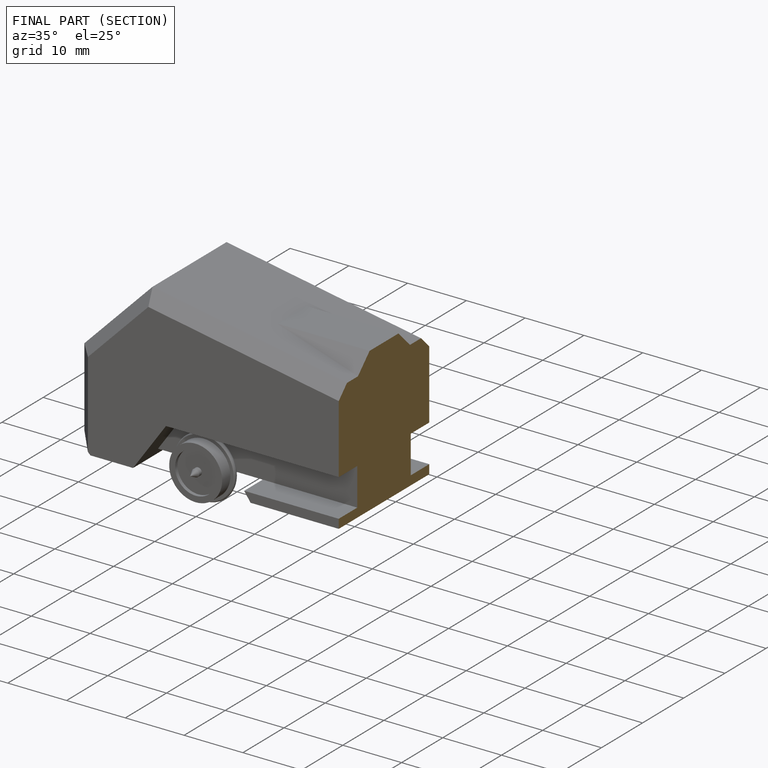
[diagram: finished part — half-section view (interior)]
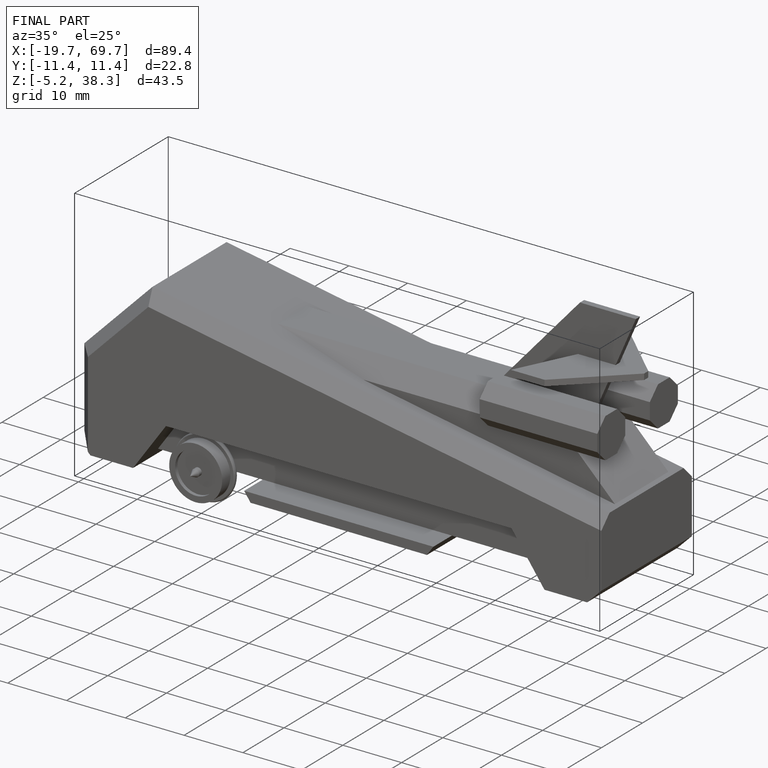
[diagram: finished part — iso view with bounding-box wireframe]
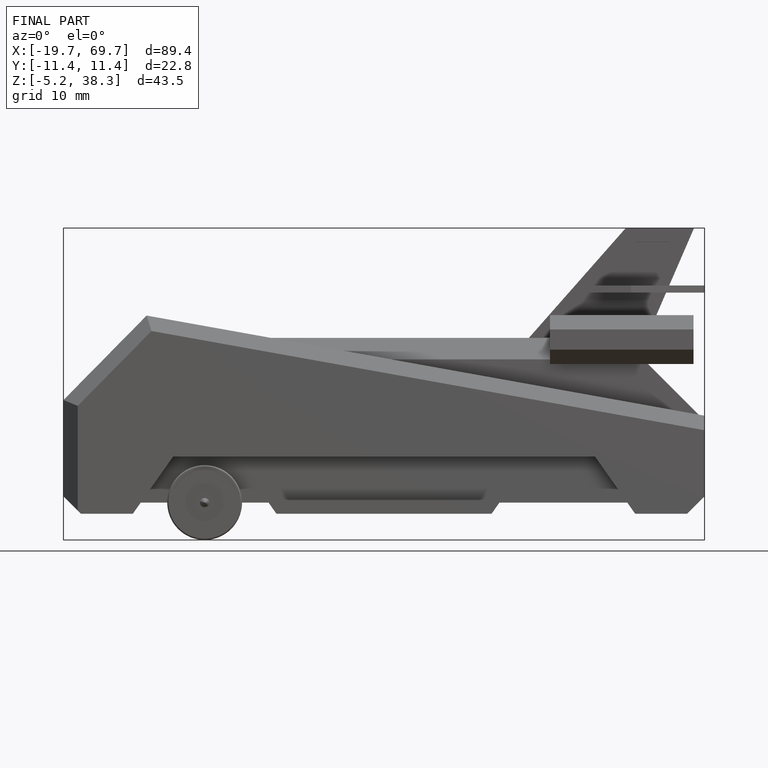
[diagram: finished part — front view with bounding-box wireframe]
